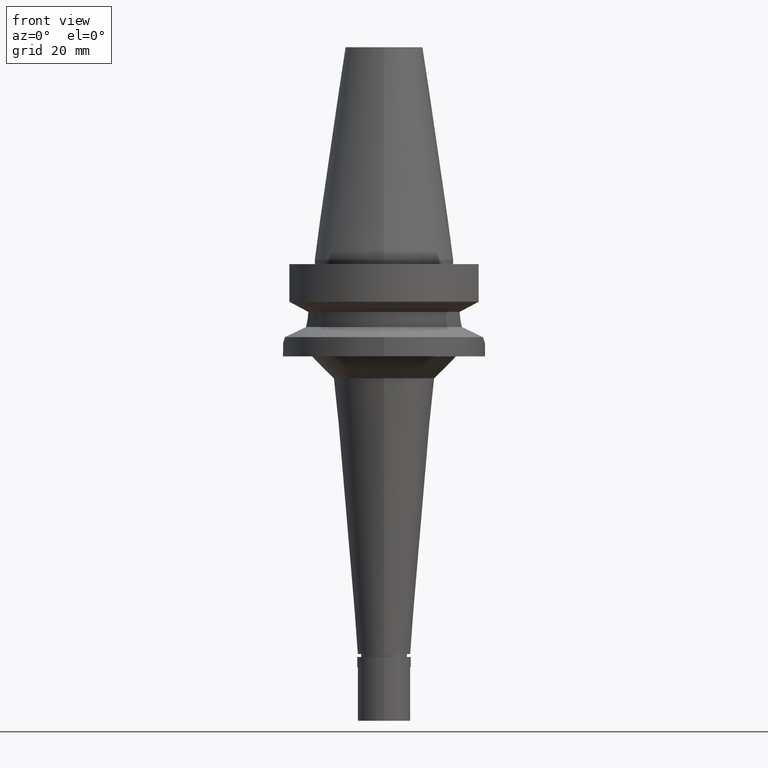
[diagram: clean part render]
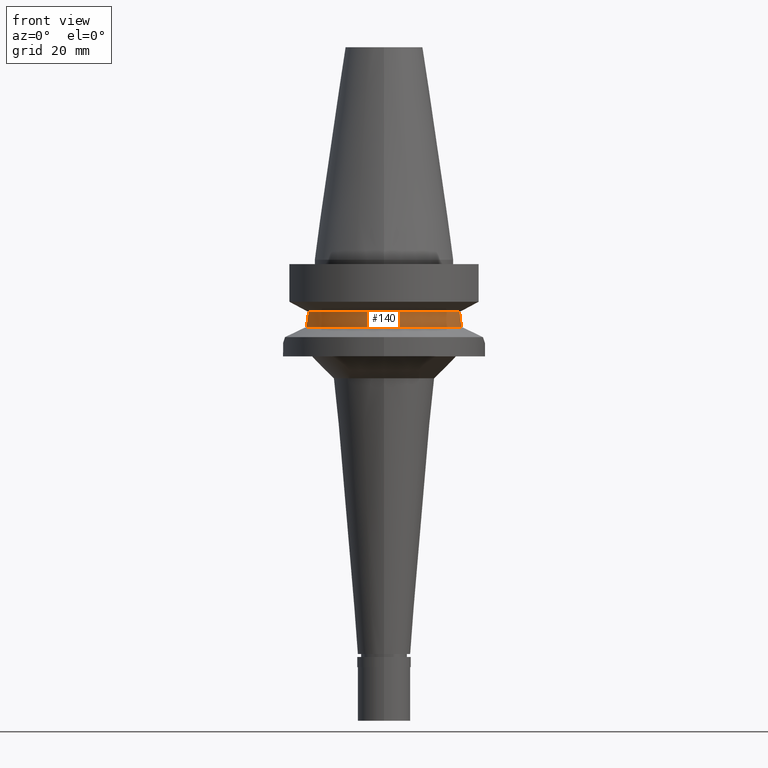
[diagram: same view with one face highlighted and labeled with its STEP entity id]
A machine part, front view. The second image highlights one B-rep face of the part: STEP entity #140.
In plain terms, the highlighted cylindrical surface (partial cylindrical patch) has radius 19 mm, axis along (0, 0, -1).
Its self-contained STEP definition (entity closure, byte-faithful):
#99 = CARTESIAN_POINT ( 'NONE',  ( 17.23531135313999840, -7.996501749111999402, -11.87660739352999961 ) ) ;
#140 = ADVANCED_FACE ( 'NONE', ( #2035 ), #2753, .T. ) ;
#147 = CARTESIAN_POINT ( 'NONE',  ( -17.75736593456000278, -6.758398853743999624, -15.32339055352999857 ) ) ;
#301 = CARTESIAN_POINT ( 'NONE',  ( 17.32020050329956007, -7.811458914743212745, -12.90105448524559506 ) ) ;
#371 = CARTESIAN_POINT ( 'NONE',  ( -17.23531622871000124, -7.996491146968002006, -11.87660607765999998 ) ) ;
#409 = CARTESIAN_POINT ( 'NONE',  ( -17.42530200116237182, -7.573745136831234070, -13.67781228283447170 ) ) ;
#438 = CARTESIAN_POINT ( 'NONE',  ( -17.43829208205462677, -7.543842010294627087, -13.75982229030554294 ) ) ;
#451 = CARTESIAN_POINT ( 'NONE',  ( -17.51075975482907410, -7.374774100564776447, -14.18061732682664733 ) ) ;
#560 = CARTESIAN_POINT ( 'NONE',  ( 17.41902787752291815, -7.588152995022457326, -13.63747255037748651 ) ) ;
#617 = B_SPLINE_CURVE_WITH_KNOTS ( 'NONE', 3,
 ( #2481, #2492, #857, #1117, #451, #900, #1794, #438, #1781, #409, #1347, #1334, #1768, #1072, #1752 ),
 .UNSPECIFIED., .F., .F.,
 ( 4, 2, 2, 1, 1, 1, 2, 2, 4 ),
 ( 0.0000000000000000000, 0.2499999999999691358, 0.3749999999999533151, 0.4374999999999459876, 0.4687499999999422684, 0.4843749999999411582, 0.4921874999999413802, 0.4999999999999417133, 1.000000000000000000 ),
 .UNSPECIFIED. ) ;
#713 = CARTESIAN_POINT ( 'NONE',  ( 17.75736593456000278, -6.758398853743999624, -15.32339055352999857 ) ) ;
#727 = CARTESIAN_POINT ( 'NONE',  ( 17.27395659107183334, -7.913383733943912368, -12.45760532097251172 ) ) ;
#781 = CARTESIAN_POINT ( 'NONE',  ( 17.40050649189846865, -7.630573670530795383, -13.51506551006684020 ) ) ;
#828 = EDGE_CURVE ( 'NONE', #1664, #1178, #887, .T. ) ;
#857 = CARTESIAN_POINT ( 'NONE',  ( -17.62115393398959284, -7.108314286161379059, -14.74104729154541715 ) ) ;
#887 = B_SPLINE_CURVE_WITH_KNOTS ( 'NONE', 3,
 ( #99, #2351, #727, #301, #1391, #1214, #1920, #781, #1169, #1278, #1536, #560, #1744, #1714, #2852 ),
 .UNSPECIFIED., .F., .F.,
 ( 4, 2, 2, 1, 1, 1, 2, 2, 4 ),
 ( 0.0000000000000000000, 0.2500000000000104361, 0.3750000000000163203, 0.4375000000000191513, 0.4687500000000210942, 0.4843750000000218159, 0.4921875000000222045, 0.5000000000000225375, 1.000000000000000000 ),
 .UNSPECIFIED. ) ;
#892 = ORIENTED_EDGE ( 'NONE', *, *, #1630, .F. ) ;
#900 = CARTESIAN_POINT ( 'NONE',  ( -17.47457515158242458, -7.459683392738515550, -13.97672166159847507 ) ) ;
#913 = CARTESIAN_POINT ( 'NONE',  ( 0.0000000000000000000, 1.908856965831000054E-14, 55.87000000000000455 ) ) ;
#1072 = CARTESIAN_POINT ( 'NONE',  ( -17.26628513365695028, -7.929743408154030782, -12.45264693474679696 ) ) ;
#1077 = EDGE_CURVE ( 'NONE', #2673, #1178, #1280, .T. ) ;
#1095 = DIRECTION ( 'NONE',  ( 0.0000000000000000000, -1.000000000000000000, 0.0000000000000000000 ) ) ;
#1117 = CARTESIAN_POINT ( 'NONE',  ( -17.53686880992248120, -7.312704823710955537, -14.31916399877911239 ) ) ;
#1142 = DIRECTION ( 'NONE',  ( 0.0000000000000000000, -1.000000000000000000, 0.0000000000000000000 ) ) ;
#1169 = CARTESIAN_POINT ( 'NONE',  ( 17.41029186860104261, -7.608187570459147508, -13.58033536419008414 ) ) ;
#1178 = VERTEX_POINT ( 'NONE', #713 ) ;
#1214 = CARTESIAN_POINT ( 'NONE',  ( 17.36640820072438984, -7.707990843834798156, -13.27279658044272104 ) ) ;
#1278 = CARTESIAN_POINT ( 'NONE',  ( 17.41455302328521526, -7.598419946123484259, -13.60830999035339239 ) ) ;
#1280 = CIRCLE ( 'NONE', #2065, 19.00000000000000000 ) ;
#1321 = CARTESIAN_POINT ( 'NONE',  ( 17.23531135313999840, -7.996501749111999402, -11.87660739352999961 ) ) ;
#1334 = CARTESIAN_POINT ( 'NONE',  ( -17.42166768675156874, -7.582098110320103501, -13.65451217843374110 ) ) ;
#1347 = CARTESIAN_POINT ( 'NONE',  ( -17.42275208308870305, -7.579606443204295552, -13.66148324984561491 ) ) ;
#1391 = CARTESIAN_POINT ( 'NONE',  ( 17.33753291668423557, -7.772931439716203705, -13.04953900761608487 ) ) ;
#1413 = ORIENTED_EDGE ( 'NONE', *, *, #828, .F. ) ;
#1536 = CARTESIAN_POINT ( 'NONE',  ( 17.41740877569946377, -7.591869531162176443, -13.62695997434985884 ) ) ;
#1630 = EDGE_CURVE ( 'NONE', #2673, #2689, #617, .T. ) ;
#1664 = VERTEX_POINT ( 'NONE', #1321 ) ;
#1714 = CARTESIAN_POINT ( 'NONE',  ( 17.61323061601335738, -7.137107428168286916, -14.73815501054308541 ) ) ;
#1744 = CARTESIAN_POINT ( 'NONE',  ( 17.50087097184368190, -7.400178023009382322, -14.16642114489269133 ) ) ;
#1752 = CARTESIAN_POINT ( 'NONE',  ( -17.23531622871000124, -7.996491146968002006, -11.87660607765999998 ) ) ;
#1768 = CARTESIAN_POINT ( 'NONE',  ( -17.32792153685079484, -7.797400560123828761, -13.04855951571731509 ) ) ;
#1771 = DIRECTION ( 'NONE',  ( 0.0000000000000000000, 0.0000000000000000000, 1.000000000000000000 ) ) ;
#1781 = CARTESIAN_POINT ( 'NONE',  ( -17.42915015154937919, -7.564895737973924561, -13.70234134486693556 ) ) ;
#1794 = CARTESIAN_POINT ( 'NONE',  ( -17.45722759480745623, -7.500089563079454180, -13.87575274167376449 ) ) ;
#1920 = CARTESIAN_POINT ( 'NONE',  ( 17.38156500873525445, -7.673733568343122258, -13.38455737039663163 ) ) ;
#1981 = DIRECTION ( 'NONE',  ( 0.0000000000000000000, 0.0000000000000000000, -1.000000000000000000 ) ) ;
#2035 = FACE_OUTER_BOUND ( 'NONE', #2211, .T. ) ;
#2062 = DIRECTION ( 'NONE',  ( 0.0000000000000000000, 0.0000000000000000000, -1.000000000000000000 ) ) ;
#2065 = AXIS2_PLACEMENT_3D ( 'NONE', #2729, #1771, #1095 ) ;
#2195 = DIRECTION ( 'NONE',  ( 0.0000000000000000000, -1.000000000000000000, 0.0000000000000000000 ) ) ;
#2211 = EDGE_LOOP ( 'NONE', ( #892, #2801, #1413, #2225 ) ) ;
#2225 = ORIENTED_EDGE ( 'NONE', *, *, #2728, .T. ) ;
#2239 = CIRCLE ( 'NONE', #2322, 19.00000000000000000 ) ;
#2322 = AXIS2_PLACEMENT_3D ( 'NONE', #2886, #1981, #2195 ) ;
#2351 = CARTESIAN_POINT ( 'NONE',  ( 17.25079842015505704, -7.963112712671646776, -12.16467410600582078 ) ) ;
#2481 = CARTESIAN_POINT ( 'NONE',  ( -17.75736593456000278, -6.758398853743999624, -15.32339055352999857 ) ) ;
#2492 = CARTESIAN_POINT ( 'NONE',  ( -17.68528796175019480, -6.947780239291103221, -15.03073090575035131 ) ) ;
#2673 = VERTEX_POINT ( 'NONE', #147 ) ;
#2689 = VERTEX_POINT ( 'NONE', #371 ) ;
#2718 = AXIS2_PLACEMENT_3D ( 'NONE', #913, #2062, #1142 ) ;
#2728 = EDGE_CURVE ( 'NONE', #1664, #2689, #2239, .T. ) ;
#2729 = CARTESIAN_POINT ( 'NONE',  ( 0.0000000000000000000, 1.022848384030000006E-14, -15.32339055352999857 ) ) ;
#2753 = CYLINDRICAL_SURFACE ( 'NONE', #2718, 19.00000000000000000 ) ;
#2801 = ORIENTED_EDGE ( 'NONE', *, *, #1077, .T. ) ;
#2852 = CARTESIAN_POINT ( 'NONE',  ( 17.75736593456000278, -6.758398853743999624, -15.32339055352999857 ) ) ;
#2886 = CARTESIAN_POINT ( 'NONE',  ( 0.0000000000000000000, 1.093341284896999988E-14, -11.87660944646999894 ) ) ;